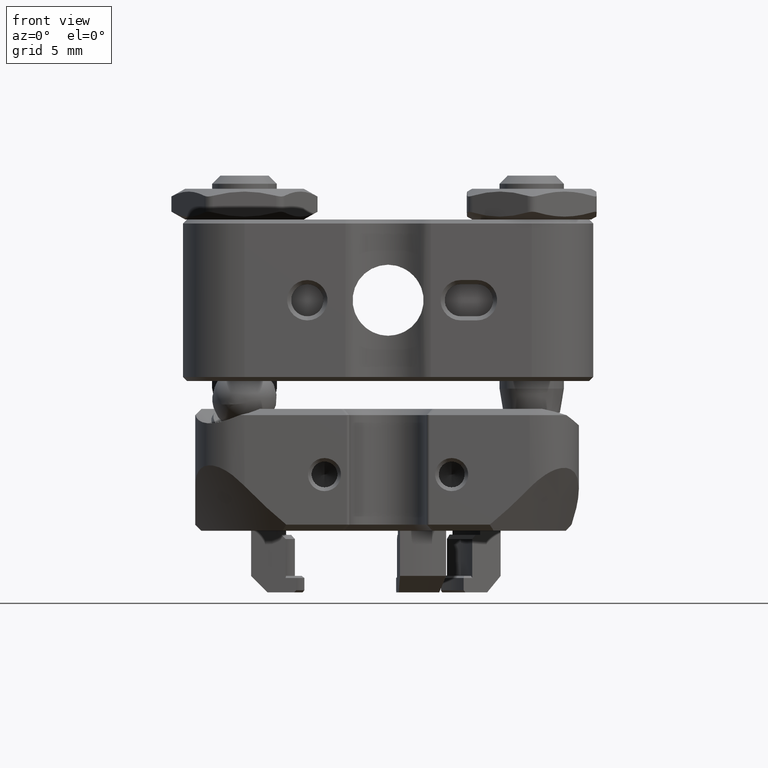
[diagram: clean part render]
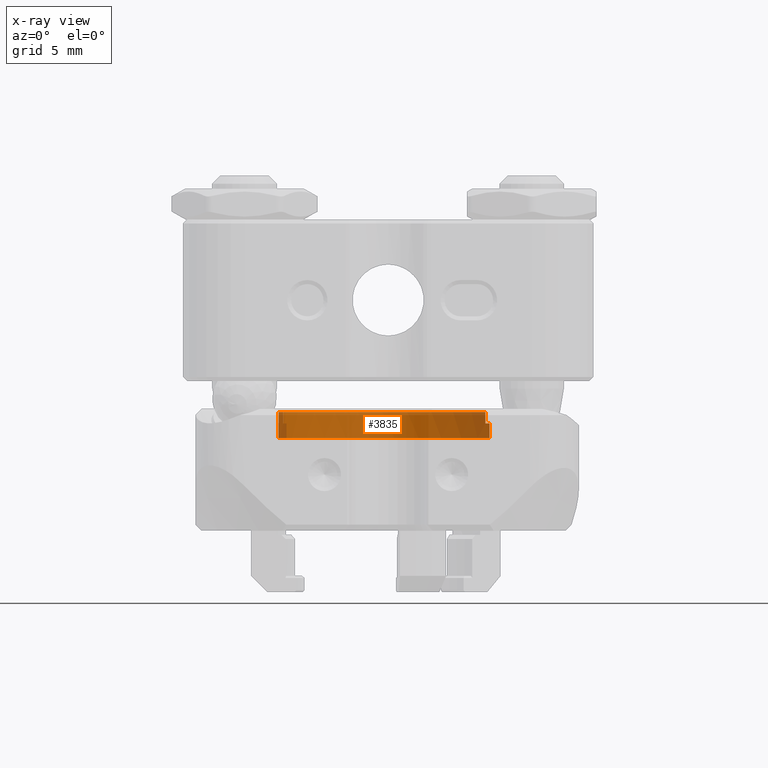
[diagram: x-ray — body ghosted, one internal face saturated and labeled with its STEP entity id]
A machine part, front view, then the same camera in x-ray: the body is ghosted and one INTERNAL B-rep face — a face not visible from any outside direction — is saturated and labeled: STEP entity #3835.
In plain terms, the highlighted cylindrical surface (partial cylindrical patch) has radius 6.795 mm, axis along (0, 0, 1).
Its self-contained STEP definition (entity closure, byte-faithful):
#433 = ORIENTED_EDGE ( 'NONE', *, *, #5892, .F. ) ;
#678 = CIRCLE ( 'NONE', #14002, 6.795000000000005258 ) ;
#868 = DIRECTION ( 'NONE',  ( 0.000000000000000000, 0.000000000000000000, -1.000000000000000000 ) ) ;
#1160 = AXIS2_PLACEMENT_3D ( 'NONE', #7524, #6316, #12442 ) ;
#1359 = CARTESIAN_POINT ( 'NONE',  ( 6.795000000000003482, 8.321475000206269173E-16, 0.7999999999999969358 ) ) ;
#1401 = EDGE_CURVE ( 'NONE', #9443, #6354, #7540, .T. ) ;
#1739 = VERTEX_POINT ( 'NONE', #7052 ) ;
#2192 = EDGE_CURVE ( 'NONE', #1739, #3253, #12307, .T. ) ;
#2305 = VERTEX_POINT ( 'NONE', #11751 ) ;
#2568 = CARTESIAN_POINT ( 'NONE',  ( 6.795000000000003482, 8.321475000206269173E-16, 1.000000000000000000 ) ) ;
#3247 = VERTEX_POINT ( 'NONE', #13459 ) ;
#3253 = VERTEX_POINT ( 'NONE', #11204 ) ;
#3676 = CARTESIAN_POINT ( 'NONE',  ( 6.768458096198873619, 0.5999999999999998668, -0.7999999999999992673 ) ) ;
#3710 = EDGE_CURVE ( 'NONE', #2305, #1739, #678, .T. ) ;
#3831 = LINE ( 'NONE', #5124, #5783 ) ;
#3835 = ADVANCED_FACE ( 'NONE', ( #5400 ), #11587, .T. ) ;
#3939 = DIRECTION ( 'NONE',  ( -1.000000000000000000, 0.000000000000000000, 0.000000000000000000 ) ) ;
#5124 = CARTESIAN_POINT ( 'NONE',  ( -6.795000000000003482, 0.000000000000000000, 1.000000000000000000 ) ) ;
#5221 = DIRECTION ( 'NONE',  ( -0.000000000000000000, -0.000000000000000000, -1.000000000000000000 ) ) ;
#5246 = DIRECTION ( 'NONE',  ( -0.000000000000000000, -0.000000000000000000, -1.000000000000000000 ) ) ;
#5400 = FACE_OUTER_BOUND ( 'NONE', #13635, .T. ) ;
#5675 = EDGE_CURVE ( 'NONE', #3247, #9443, #15003, .T. ) ;
#5783 = VECTOR ( 'NONE', #13492, 1000.000000000000000 ) ;
#5892 = EDGE_CURVE ( 'NONE', #8301, #6354, #12198, .T. ) ;
#6193 = DIRECTION ( 'NONE',  ( 0.000000000000000000, 0.000000000000000000, -1.000000000000000000 ) ) ;
#6316 = DIRECTION ( 'NONE',  ( 0.000000000000000000, 0.000000000000000000, -1.000000000000000000 ) ) ;
#6354 = VERTEX_POINT ( 'NONE', #15323 ) ;
#6549 = VECTOR ( 'NONE', #11319, 1000.000000000000000 ) ;
#6731 = DIRECTION ( 'NONE',  ( -1.000000000000000000, 0.000000000000000000, 0.000000000000000000 ) ) ;
#6809 = CARTESIAN_POINT ( 'NONE',  ( 0.000000000000000000, 0.000000000000000000, -0.1000000000000000472 ) ) ;
#6815 = EDGE_CURVE ( 'NONE', #3247, #2305, #3831, .T. ) ;
#7001 = CIRCLE ( 'NONE', #8290, 6.795000000000003482 ) ;
#7052 = CARTESIAN_POINT ( 'NONE',  ( -6.768458096198873619, 0.5999999999999998668, -0.1000000000000000472 ) ) ;
#7055 = ORIENTED_EDGE ( 'NONE', *, *, #1401, .T. ) ;
#7115 = ORIENTED_EDGE ( 'NONE', *, *, #2192, .F. ) ;
#7524 = CARTESIAN_POINT ( 'NONE',  ( 0.000000000000000000, 0.000000000000000000, 0.7999999999999969358 ) ) ;
#7540 = LINE ( 'NONE', #2568, #6549 ) ;
#7631 = DIRECTION ( 'NONE',  ( -0.000000000000000000, -0.000000000000000000, -1.000000000000000000 ) ) ;
#7843 = AXIS2_PLACEMENT_3D ( 'NONE', #7957, #7631, #3939 ) ;
#7957 = CARTESIAN_POINT ( 'NONE',  ( 0.000000000000000000, 0.000000000000000000, 1.000000000000000000 ) ) ;
#8290 = AXIS2_PLACEMENT_3D ( 'NONE', #15782, #13198, #14489 ) ;
#8301 = VERTEX_POINT ( 'NONE', #11148 ) ;
#8332 = AXIS2_PLACEMENT_3D ( 'NONE', #6809, #868, #6731 ) ;
#8674 = CARTESIAN_POINT ( 'NONE',  ( -6.768458096198873619, 0.5999999999999998668, -0.1000000000000000472 ) ) ;
#8957 = ORIENTED_EDGE ( 'NONE', *, *, #6815, .F. ) ;
#9083 = VECTOR ( 'NONE', #5221, 1000.000000000000000 ) ;
#9443 = VERTEX_POINT ( 'NONE', #1359 ) ;
#9449 = VERTEX_POINT ( 'NONE', #3676 ) ;
#9820 = DIRECTION ( 'NONE',  ( -1.000000000000000000, 0.000000000000000000, 0.000000000000000000 ) ) ;
#10000 = ORIENTED_EDGE ( 'NONE', *, *, #14911, .T. ) ;
#10351 = ORIENTED_EDGE ( 'NONE', *, *, #14169, .T. ) ;
#10446 = LINE ( 'NONE', #12844, #9083 ) ;
#10954 = CARTESIAN_POINT ( 'NONE',  ( 0.000000000000000000, 0.000000000000000000, -0.1000000000000000472 ) ) ;
#11148 = CARTESIAN_POINT ( 'NONE',  ( 6.768458096198873619, 0.5999999999999998668, -0.1000000000000000472 ) ) ;
#11204 = CARTESIAN_POINT ( 'NONE',  ( -6.768458096198873619, 0.5999999999999998668, -0.7999999999999994893 ) ) ;
#11319 = DIRECTION ( 'NONE',  ( -0.000000000000000000, -0.000000000000000000, -1.000000000000000000 ) ) ;
#11493 = ORIENTED_EDGE ( 'NONE', *, *, #3710, .F. ) ;
#11587 = CYLINDRICAL_SURFACE ( 'NONE', #7843, 6.795000000000003482 ) ;
#11751 = CARTESIAN_POINT ( 'NONE',  ( -6.795000000000005258, 0.000000000000000000, -0.1000000000000000472 ) ) ;
#11944 = ORIENTED_EDGE ( 'NONE', *, *, #5675, .T. ) ;
#12198 = CIRCLE ( 'NONE', #8332, 6.795000000000005258 ) ;
#12307 = LINE ( 'NONE', #8674, #14818 ) ;
#12442 = DIRECTION ( 'NONE',  ( 1.000000000000000000, 0.000000000000000000, 0.000000000000000000 ) ) ;
#12844 = CARTESIAN_POINT ( 'NONE',  ( 6.768458096198873619, 0.5999999999999998668, -0.1000000000000000472 ) ) ;
#13198 = DIRECTION ( 'NONE',  ( -0.000000000000000000, -0.000000000000000000, 1.000000000000000000 ) ) ;
#13459 = CARTESIAN_POINT ( 'NONE',  ( -6.795000000000003482, 0.000000000000000000, 0.7999999999999969358 ) ) ;
#13492 = DIRECTION ( 'NONE',  ( -0.000000000000000000, -0.000000000000000000, -1.000000000000000000 ) ) ;
#13635 = EDGE_LOOP ( 'NONE', ( #11944, #7055, #433, #10000, #10351, #7115, #11493, #8957 ) ) ;
#14002 = AXIS2_PLACEMENT_3D ( 'NONE', #10954, #6193, #9820 ) ;
#14169 = EDGE_CURVE ( 'NONE', #9449, #3253, #7001, .T. ) ;
#14489 = DIRECTION ( 'NONE',  ( 1.000000000000000000, 0.000000000000000000, 0.000000000000000000 ) ) ;
#14818 = VECTOR ( 'NONE', #5246, 1000.000000000000000 ) ;
#14911 = EDGE_CURVE ( 'NONE', #8301, #9449, #10446, .T. ) ;
#15003 = CIRCLE ( 'NONE', #1160, 6.795000000000003482 ) ;
#15323 = CARTESIAN_POINT ( 'NONE',  ( 6.795000000000005258, 8.321475000206271145E-16, -0.1000000000000000472 ) ) ;
#15782 = CARTESIAN_POINT ( 'NONE',  ( 0.000000000000000000, 0.000000000000000000, -0.8000000000000012657 ) ) ;